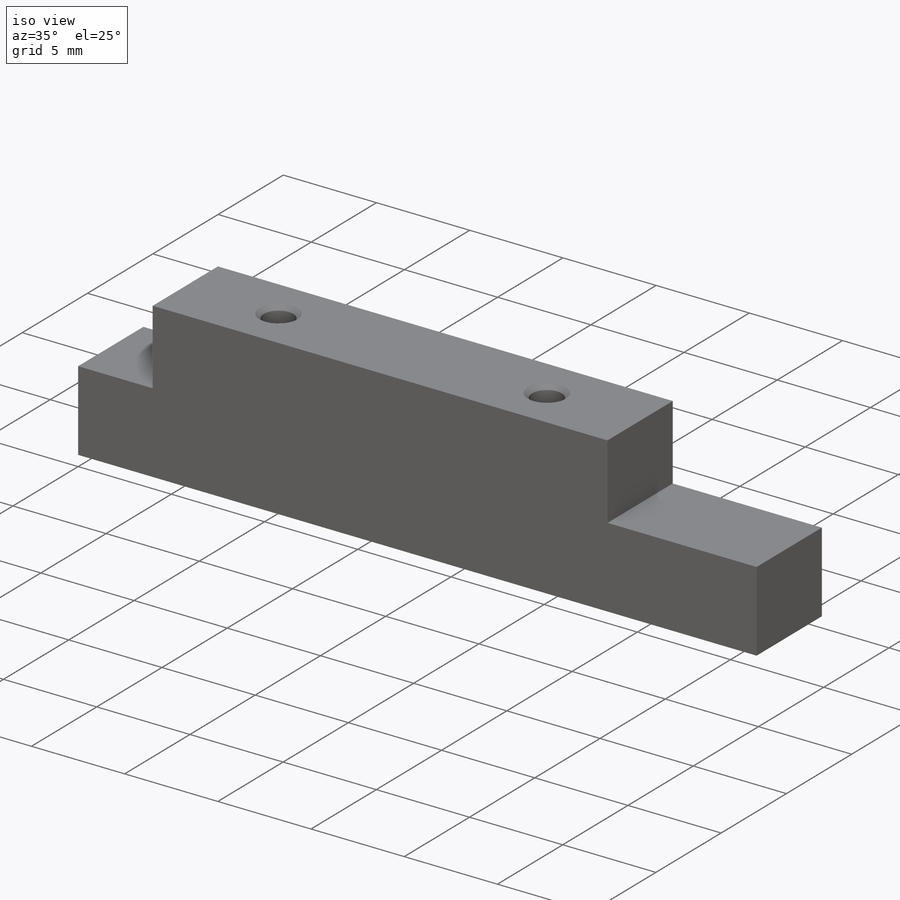
[diagram: iso view]
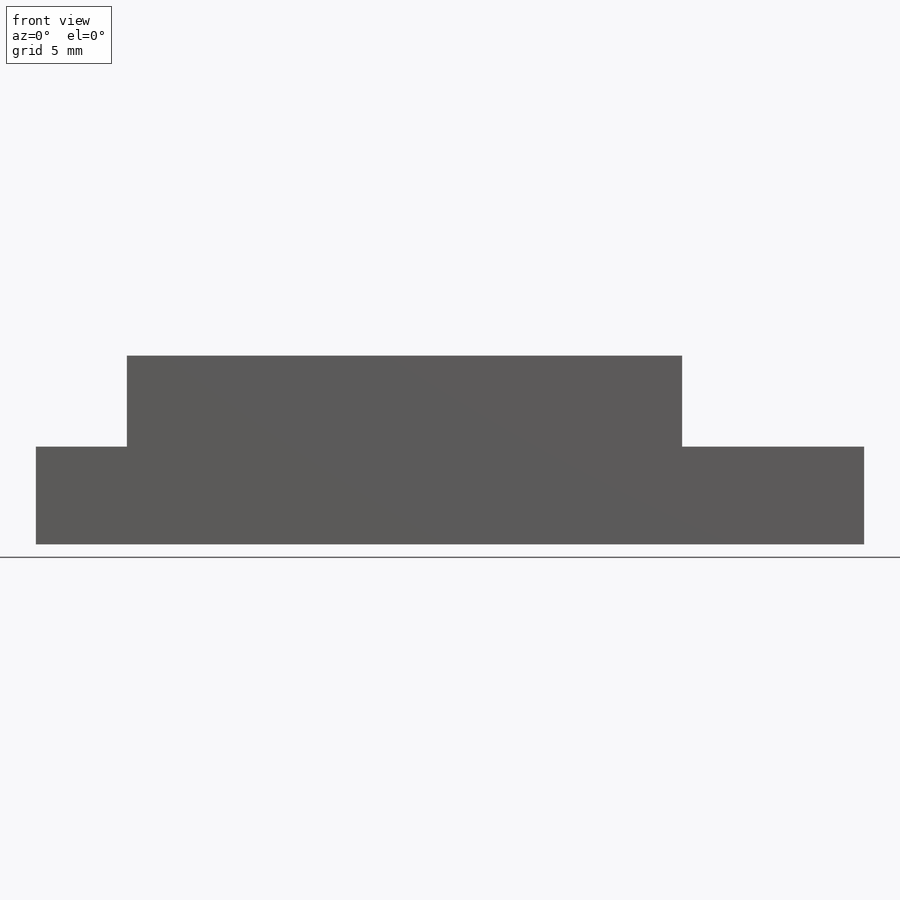
[diagram: front view]
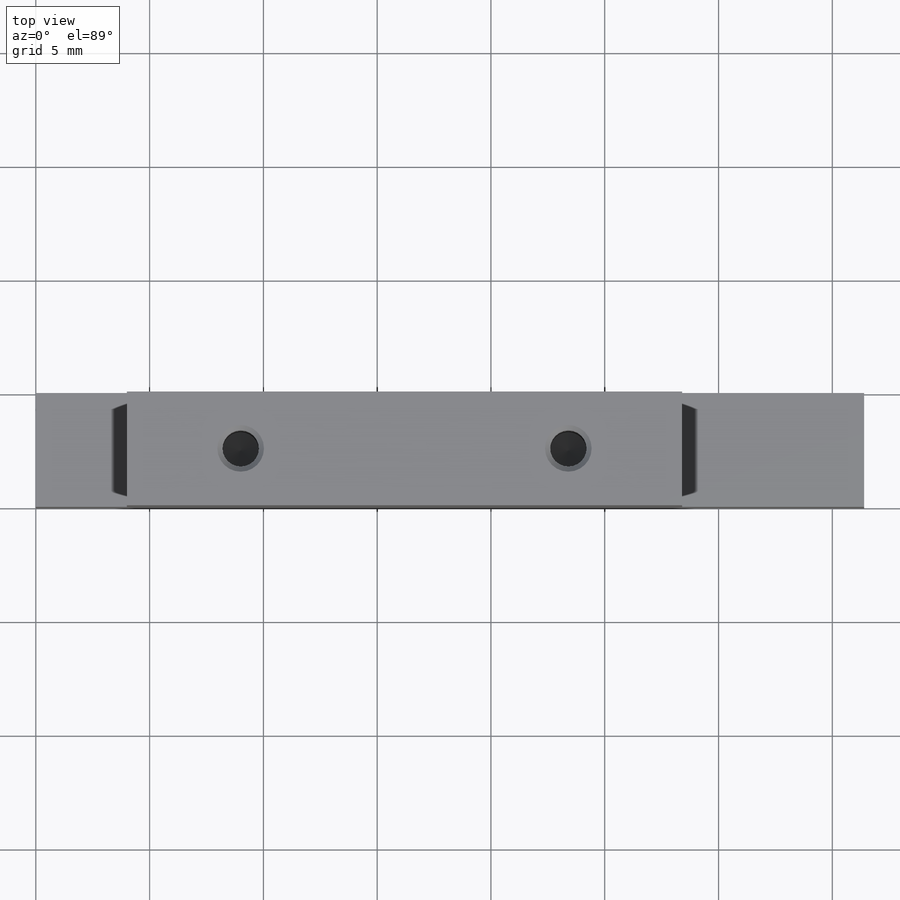
[diagram: top view]
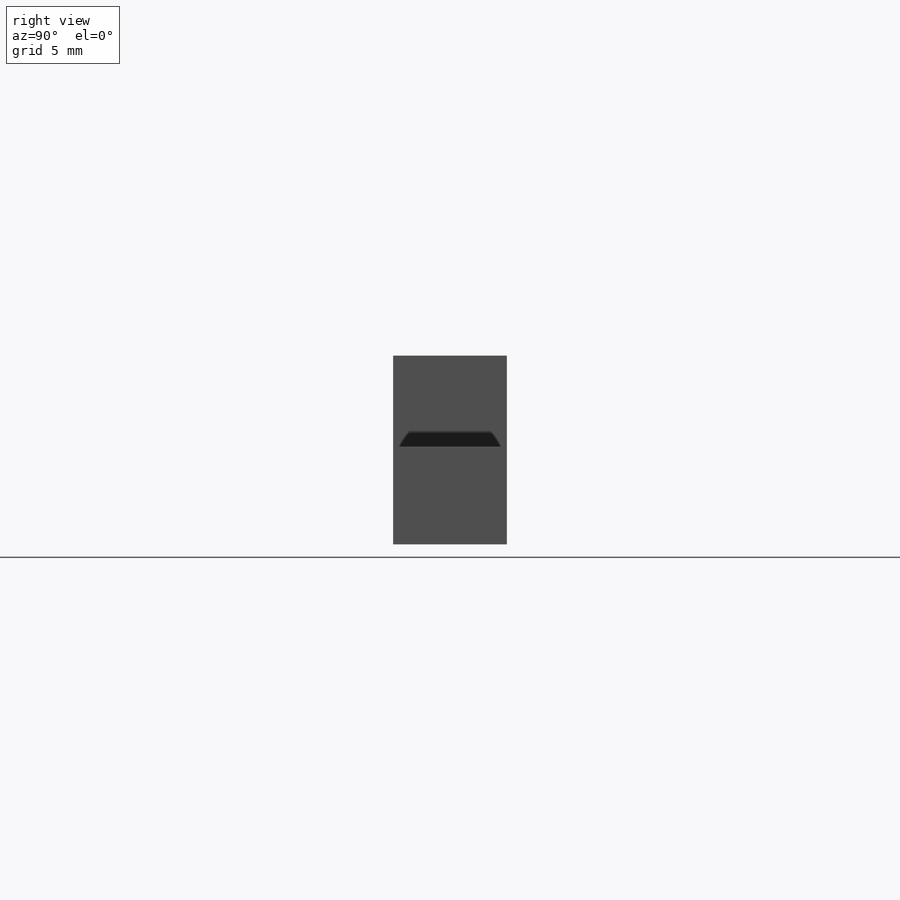
[diagram: right view]
SOLIDWORKS PART (.sldprt)
format: sldprt  version: not decoded by parser v0  size: 182,272 bytes
history: native  units: mm
features: sketch x4, extrude x2, thread x2, material x1, hole x1 (+11 scaffold rows collapsed)
feature tree (21):
  scaffold x11  (default folders/planes/origin — collapsed)
  material  "Material <not specified>"
  sketch  "Sketch2"  dims[D1=36.4mm D2=5.0mm]
  extrude  "Boss-Extrude1"  Depth=4.3mm
  sketch  "Sketch3"  dims[D1=4.0mm D2=8.0mm]
  extrude  "Boss-Extrude2"  Depth=4mm
  hole  "M2x0.4 Tapped Hole1"  Diameter=1.6mm Depth=5mm
  sketch  "Sketch5"  dims[D1=9.0mm D2=13.0mm D3=2.5mm D4=2.5mm]
  sketch  "Sketch4"  dims[hole-wizard template sketch: 39 standard entries collapsed; hole parameters kept: c13.Tap Drill Dia.=1.6mm c13.Tap Drill Depth=5.0mm c13.Near C'Sink Dia.=2.05mm c13.D4=~33.297463mm c13.Near C'Sink Angle=90.0deg c14.D5=~14.816244mm c14.Drill Angle=118.0deg]
  thread  "Hole Thread1"  Diameter=5mm  [1 undecoded]
  thread  "Hole Thread2"  Diameter=5mm  [1 undecoded]
decode coverage: 9 of 9 modeling features carry decoded parameters
note: ~ marks probable driven/reference dimensions
note: 2 parameter values undecoded
note: suppression state not decoded; provenance and decode notes live in map.json
